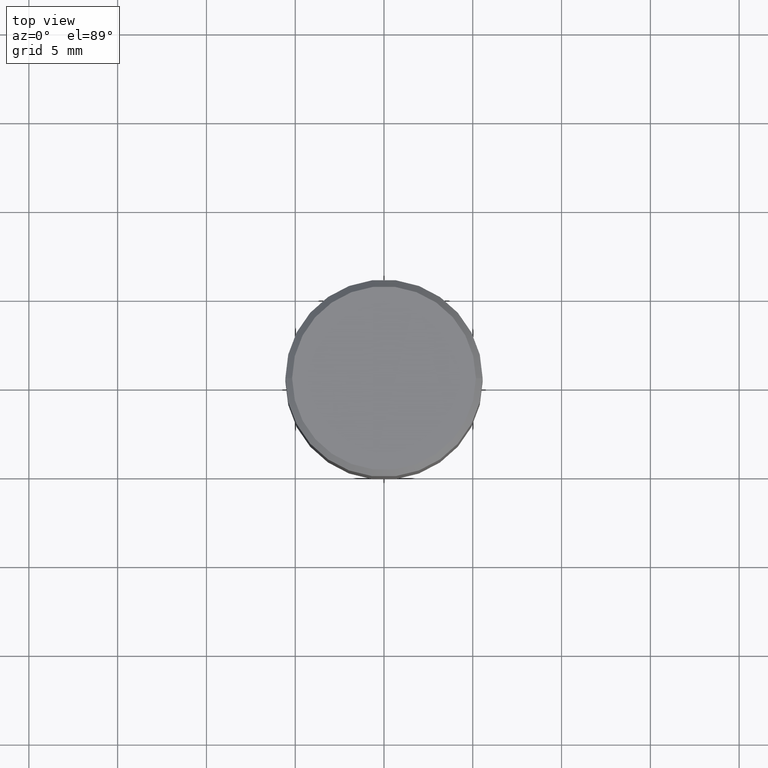
[diagram: clean part render]
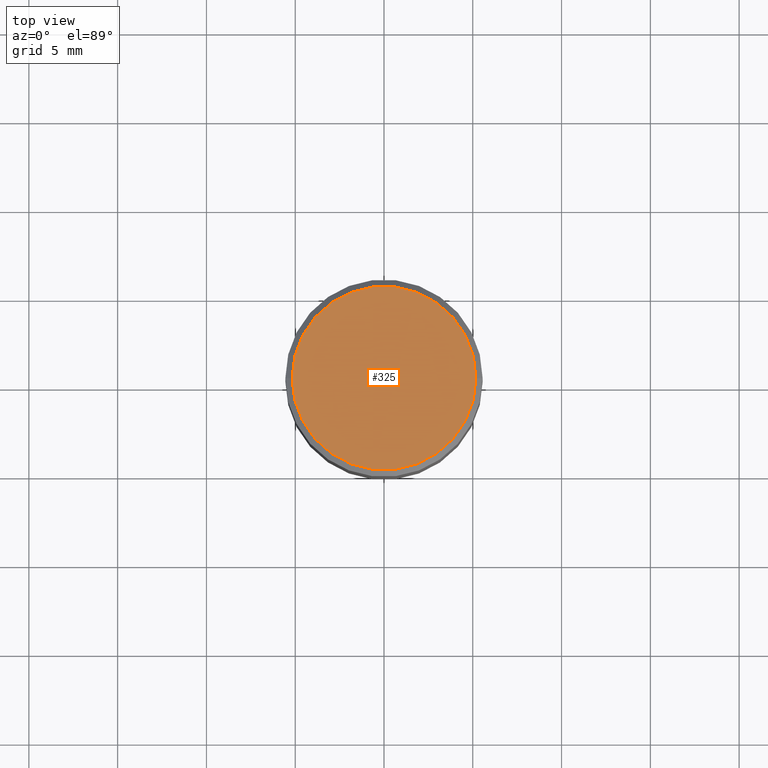
[diagram: same view with one face highlighted and labeled with its STEP entity id]
A machine part, top view. The second image highlights one B-rep face of the part: STEP entity #325.
In plain terms, the highlighted planar face has unit normal (0, -0, -1).
Its self-contained STEP definition (entity closure, byte-faithful):
#17 = DIRECTION ( 'NONE',  ( -1.000000000000000000, 6.982962677686265922E-15, -4.876176775795935793E-29 ) ) ;
#48 = CARTESIAN_POINT ( 'NONE',  ( 1.422778645578576487E-15, 0.2037499999999999867, -6.583817244785623957E-16 ) ) ;
#70 = CIRCLE ( 'NONE', #131, 0.2037499999999999867 ) ;
#81 = ORIENTED_EDGE ( 'NONE', *, *, #437, .T. ) ;
#95 = DIRECTION ( 'NONE',  ( 1.000000000000000000, -6.982962677686266711E-15, 4.875065411617369217E-29 ) ) ;
#131 = AXIS2_PLACEMENT_3D ( 'NONE', #376, #230, #95 ) ;
#140 = DIRECTION ( 'NONE',  ( 1.000000000000000000, -6.982962677686266711E-15, 4.875065411617369217E-29 ) ) ;
#157 = CARTESIAN_POINT ( 'NONE',  ( 0.2037499999999999867, -1.475466312070559275E-15, 1.060151966214670170E-16 ) ) ;
#207 = VERTEX_POINT ( 'NONE', #157 ) ;
#215 = EDGE_LOOP ( 'NONE', ( #315, #81 ) ) ;
#224 = AXIS2_PLACEMENT_3D ( 'NONE', #384, #391, #140 ) ;
#230 = DIRECTION ( 'NONE',  ( -2.445468806185136597E-29, 3.491481338843145583E-15, 1.000000000000000000 ) ) ;
#234 = CARTESIAN_POINT ( 'NONE',  ( -0.2037499999999999867, 1.448964755619900421E-15, 1.060151966214468518E-16 ) ) ;
#263 = FACE_OUTER_BOUND ( 'NONE', #215, .T. ) ;
#301 = PLANE ( 'NONE',  #407 ) ;
#302 = CIRCLE ( 'NONE', #224, 0.2037499999999999867 ) ;
#315 = ORIENTED_EDGE ( 'NONE', *, *, #397, .T. ) ;
#325 = ADVANCED_FACE ( 'NONE', ( #263 ), #301, .F. ) ;
#340 = DIRECTION ( 'NONE',  ( 2.438088387897960049E-29, -3.491481338843145188E-15, -1.000000000000000000 ) ) ;
#376 = CARTESIAN_POINT ( 'NONE',  ( -2.592568563193567003E-45, 3.701500806376036554E-31, 1.060151966214568974E-16 ) ) ;
#384 = CARTESIAN_POINT ( 'NONE',  ( -2.592568563193567003E-45, 3.701500806376036554E-31, 1.060151966214568974E-16 ) ) ;
#391 = DIRECTION ( 'NONE',  ( -2.445468806185136597E-29, 3.491481338843145583E-15, 1.000000000000000000 ) ) ;
#392 = VERTEX_POINT ( 'NONE', #234 ) ;
#397 = EDGE_CURVE ( 'NONE', #392, #207, #70, .T. ) ;
#407 = AXIS2_PLACEMENT_3D ( 'NONE', #48, #340, #17 ) ;
#437 = EDGE_CURVE ( 'NONE', #207, #392, #302, .T. ) ;